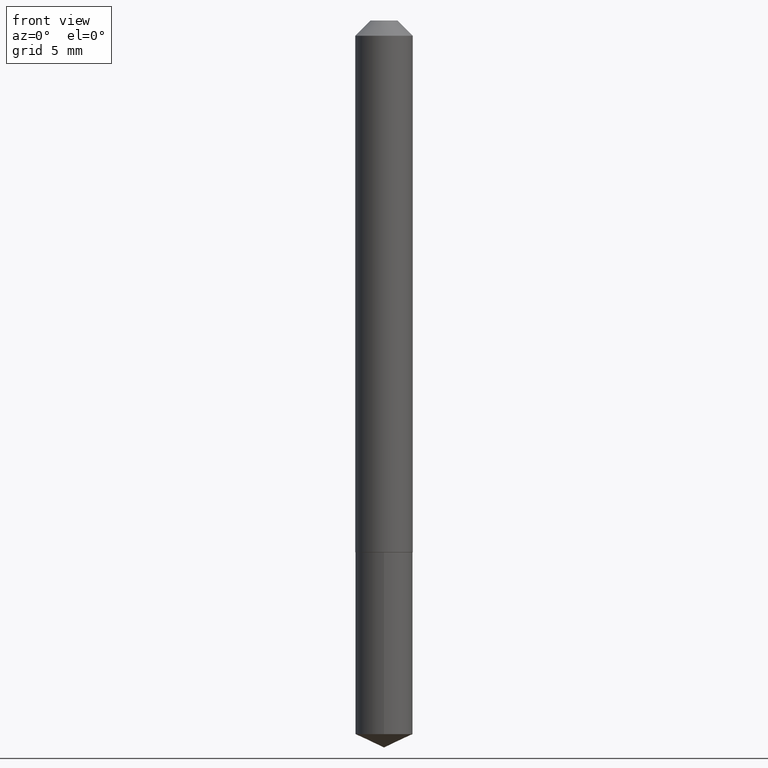
[diagram: clean part render]
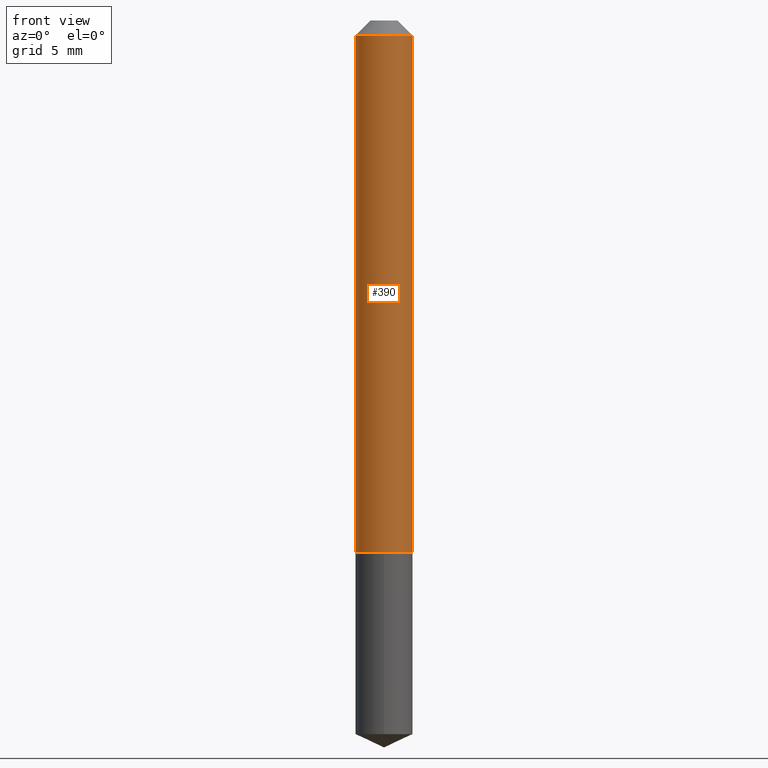
[diagram: same view with one face highlighted and labeled with its STEP entity id]
A machine part, front view. The second image highlights one B-rep face of the part: STEP entity #390.
In plain terms, the highlighted cylindrical surface (edge-blend (fillet) strip) has radius 1.4999 mm, axis along (-0, 0, 1).
Its self-contained STEP definition (entity closure, byte-faithful):
#10 = CARTESIAN_POINT ( 'NONE',  ( -0.05905000000000013710, -3.400105099228060593E-15, -1.093999999999999861 ) ) ;
#12 = CARTESIAN_POINT ( 'NONE',  ( 0.000000000000000000, 0.000000000000000000, 0.000000000000000000 ) ) ;
#21 = CARTESIAN_POINT ( 'NONE',  ( 0.05905000000000013710, -4.232024530811775401E-15, -1.093999999999999861 ) ) ;
#35 = EDGE_CURVE ( 'NONE', #232, #384, #136, .T. ) ;
#55 = DIRECTION ( 'NONE',  ( 1.000000000000000000, -6.982962677686264344E-15, 0.000000000000000000 ) ) ;
#56 = AXIS2_PLACEMENT_3D ( 'NONE', #297, #220, #62 ) ;
#60 = ORIENTED_EDGE ( 'NONE', *, *, #35, .T. ) ;
#62 = DIRECTION ( 'NONE',  ( 1.000000000000000000, -6.982962677686265922E-15, 0.000000000000000000 ) ) ;
#70 = DIRECTION ( 'NONE',  ( -2.445468806185136597E-29, 3.491481338843145583E-15, 1.000000000000000000 ) ) ;
#82 = DIRECTION ( 'NONE',  ( 1.000000000000000000, -6.982962677686266711E-15, 4.876176775795936353E-29 ) ) ;
#88 = ORIENTED_EDGE ( 'NONE', *, *, #299, .F. ) ;
#90 = CARTESIAN_POINT ( 'NONE',  ( 2.675342873966538993E-29, -3.819680584694400481E-15, -1.093999999999999861 ) ) ;
#97 = ORIENTED_EDGE ( 'NONE', *, *, #251, .F. ) ;
#98 = LINE ( 'NONE', #215, #301 ) ;
#109 = AXIS2_PLACEMENT_3D ( 'NONE', #90, #201, #55 ) ;
#111 = VERTEX_POINT ( 'NONE', #257 ) ;
#116 = DIRECTION ( 'NONE',  ( -2.445468806185136877E-29, 3.491481338843145188E-15, 1.000000000000000000 ) ) ;
#130 = EDGE_CURVE ( 'NONE', #384, #165, #379, .T. ) ;
#131 = CARTESIAN_POINT ( 'NONE',  ( 0.05905000000000000526, -5.214527379562231333E-16, -0.03125000000000021511 ) ) ;
#136 = CIRCLE ( 'NONE', #109, 0.05905000000000013710 ) ;
#137 = AXIS2_PLACEMENT_3D ( 'NONE', #12, #70, #82 ) ;
#161 = FACE_OUTER_BOUND ( 'NONE', #262, .T. ) ;
#165 = VERTEX_POINT ( 'NONE', #131 ) ;
#201 = DIRECTION ( 'NONE',  ( -2.445468806185136597E-29, 3.491481338843145583E-15, 1.000000000000000000 ) ) ;
#215 = CARTESIAN_POINT ( 'NONE',  ( -0.05905000000000006771, 4.195754854663396409E-16, -2.904631170795525045E-30 ) ) ;
#220 = DIRECTION ( 'NONE',  ( -2.445468806185136597E-29, 3.491481338843145583E-15, 1.000000000000000000 ) ) ;
#223 = CIRCLE ( 'NONE', #56, 0.05905000000000000526 ) ;
#232 = VERTEX_POINT ( 'NONE', #10 ) ;
#251 = EDGE_CURVE ( 'NONE', #111, #165, #223, .T. ) ;
#257 = CARTESIAN_POINT ( 'NONE',  ( -0.05905000000000000526, -1.544819202800284509E-15, -0.03125000000000021511 ) ) ;
#262 = EDGE_LOOP ( 'NONE', ( #88, #60, #352, #97 ) ) ;
#279 = VECTOR ( 'NONE', #116, 39.37007874015748143 ) ;
#297 = CARTESIAN_POINT ( 'NONE',  ( 7.642090019328603538E-31, -1.091087918388490390E-16, -0.03125000000000021511 ) ) ;
#299 = EDGE_CURVE ( 'NONE', #232, #111, #98, .T. ) ;
#301 = VECTOR ( 'NONE', #332, 39.37007874015748143 ) ;
#332 = DIRECTION ( 'NONE',  ( -2.445468806185136877E-29, 3.491481338843145188E-15, 1.000000000000000000 ) ) ;
#339 = CYLINDRICAL_SURFACE ( 'NONE', #137, 0.05905000000000006771 ) ;
#352 = ORIENTED_EDGE ( 'NONE', *, *, #130, .T. ) ;
#379 = LINE ( 'NONE', #389, #279 ) ;
#384 = VERTEX_POINT ( 'NONE', #21 ) ;
#389 = CARTESIAN_POINT ( 'NONE',  ( 0.05905000000000006771, -4.123439461173745257E-16, 2.879382386107503723E-30 ) ) ;
#390 = ADVANCED_FACE ( 'NONE', ( #161 ), #339, .T. ) ;